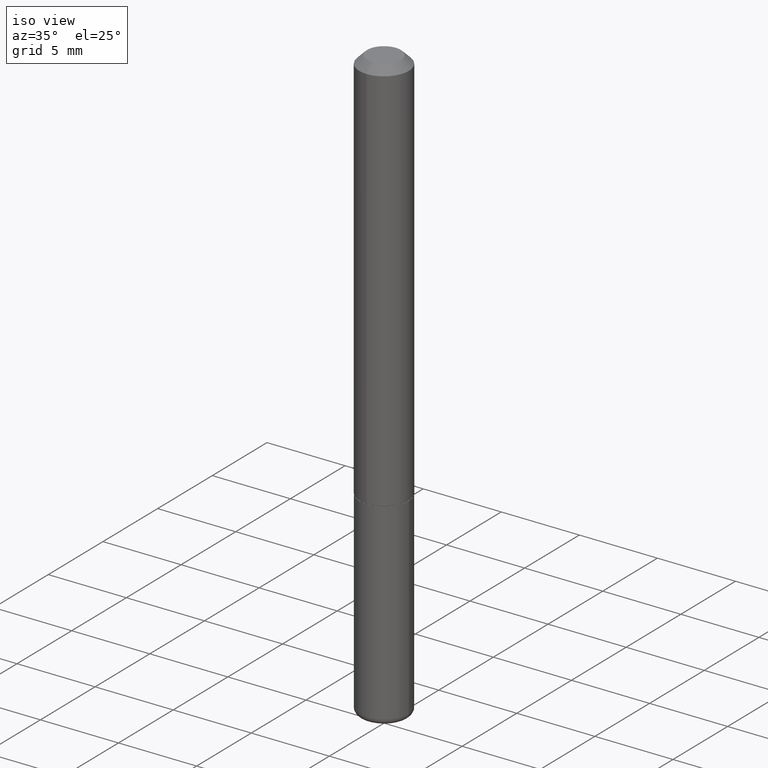
[diagram: clean part render]
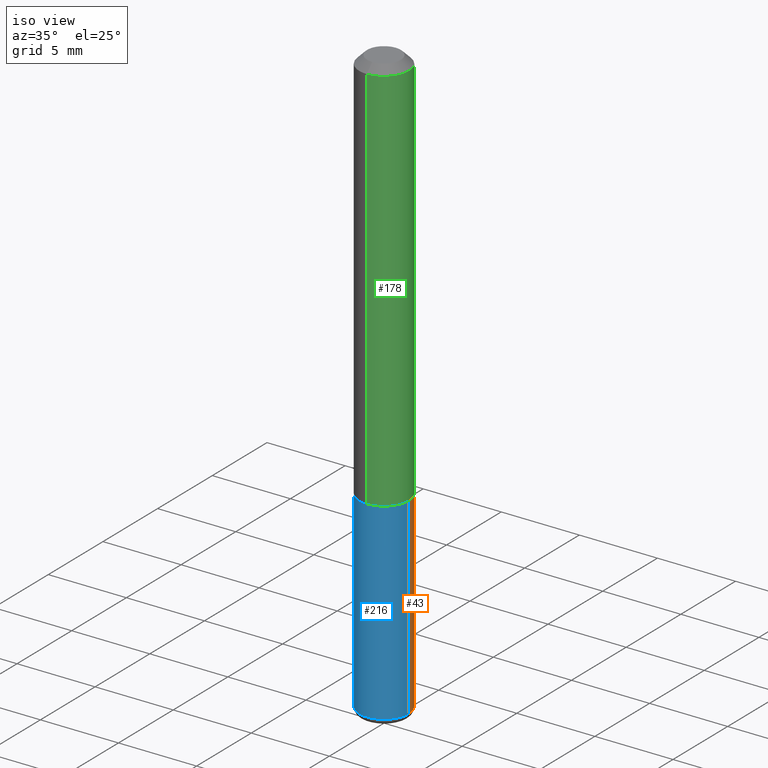
[diagram: same view with three faces highlighted in distinct colors, each labeled with its STEP entity id]
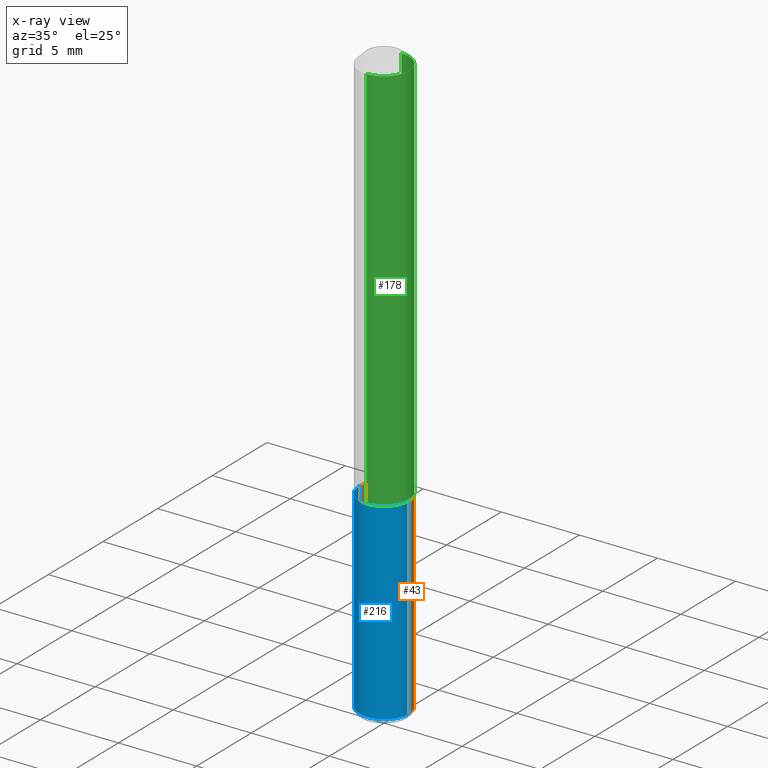
[diagram: x-ray of the same camera — body ghosted, the three highlighted faces saturated]
A machine part, iso view with three faces highlighted in distinct colors.
The next image is the same camera in x-ray (body ghosted, the three faces saturated) — at least one of them is partly hidden behind the body in this view.
Their STEP definitions:

[orange] entity #43 — the highlighted cylindrical surface (edge-blend (fillet) strip) has radius 1.5875 mm, axis along (-0, 0, 1).
#4 = CYLINDRICAL_SURFACE ( 'NONE', #40, 0.06250000000000001388 ) ;
#21 = VERTEX_POINT ( 'NONE', #140 ) ;
#23 = DIRECTION ( 'NONE',  ( -2.445468806185136877E-29, 3.491481338843145188E-15, 1.000000000000000000 ) ) ;
#39 = ORIENTED_EDGE ( 'NONE', *, *, #75, .F. ) ;
#40 = AXIS2_PLACEMENT_3D ( 'NONE', #142, #388, #105 ) ;
#43 = ADVANCED_FACE ( 'NONE', ( #387 ), #4, .T. ) ;
#45 = DIRECTION ( 'NONE',  ( -2.445468806185136877E-29, 3.491481338843145188E-15, 1.000000000000000000 ) ) ;
#57 = LINE ( 'NONE', #191, #70 ) ;
#70 = VECTOR ( 'NONE', #23, 39.37007874015748143 ) ;
#75 = EDGE_CURVE ( 'NONE', #406, #332, #241, .T. ) ;
#105 = DIRECTION ( 'NONE',  ( 1.000000000000000000, -6.982962677686267499E-15, 4.876176775795935793E-29 ) ) ;
#106 = DIRECTION ( 'NONE',  ( -2.445468806185136597E-29, 3.491481338843145583E-15, 1.000000000000000000 ) ) ;
#124 = ORIENTED_EDGE ( 'NONE', *, *, #333, .T. ) ;
#127 = ORIENTED_EDGE ( 'NONE', *, *, #236, .F. ) ;
#131 = CARTESIAN_POINT ( 'NONE',  ( 3.631521177184928138E-29, -5.184849788182071492E-15, -1.485000000000000098 ) ) ;
#140 = CARTESIAN_POINT ( 'NONE',  ( 0.06250000000000001388, -5.621284955537463950E-15, -1.485000000000000098 ) ) ;
#142 = CARTESIAN_POINT ( 'NONE',  ( 0.000000000000000000, 0.000000000000000000, 0.000000000000000000 ) ) ;
#146 = CARTESIAN_POINT ( 'NONE',  ( -0.06250000000000001388, -4.740760578332009665E-15, -1.485000000000000098 ) ) ;
#162 = CARTESIAN_POINT ( 'NONE',  ( 2.445468806185136036E-29, -3.491481338843144399E-15, -0.9999999999999996669 ) ) ;
#163 = ORIENTED_EDGE ( 'NONE', *, *, #239, .T. ) ;
#171 = DIRECTION ( 'NONE',  ( 1.000000000000000000, -6.982962677686261189E-15, 0.000000000000000000 ) ) ;
#191 = CARTESIAN_POINT ( 'NONE',  ( 0.06250000000000001388, -4.364351673553918173E-16, 3.047610484872460571E-30 ) ) ;
#221 = VECTOR ( 'NONE', #45, 39.37007874015748143 ) ;
#224 = DIRECTION ( 'NONE',  ( 1.000000000000000000, -6.982962677686269077E-15, 0.000000000000000000 ) ) ;
#236 = EDGE_CURVE ( 'NONE', #21, #406, #57, .T. ) ;
#239 = EDGE_CURVE ( 'NONE', #21, #324, #398, .T. ) ;
#241 = CIRCLE ( 'NONE', #283, 0.06250000000000001388 ) ;
#254 = DIRECTION ( 'NONE',  ( -2.445468806185136597E-29, 3.491481338843145583E-15, 1.000000000000000000 ) ) ;
#274 = LINE ( 'NONE', #397, #221 ) ;
#283 = AXIS2_PLACEMENT_3D ( 'NONE', #162, #254, #224 ) ;
#303 = CARTESIAN_POINT ( 'NONE',  ( 0.06250000000000001388, -3.927916506198536858E-15, -0.9999999999999996669 ) ) ;
#317 = AXIS2_PLACEMENT_3D ( 'NONE', #131, #106, #171 ) ;
#324 = VERTEX_POINT ( 'NONE', #146 ) ;
#332 = VERTEX_POINT ( 'NONE', #362 ) ;
#333 = EDGE_CURVE ( 'NONE', #324, #332, #274, .T. ) ;
#352 = EDGE_LOOP ( 'NONE', ( #163, #124, #39, #127 ) ) ;
#362 = CARTESIAN_POINT ( 'NONE',  ( -0.06250000000000001388, -3.894076353662544935E-15, -0.9999999999999996669 ) ) ;
#387 = FACE_OUTER_BOUND ( 'NONE', #352, .T. ) ;
#388 = DIRECTION ( 'NONE',  ( -2.445468806185136597E-29, 3.491481338843145583E-15, 1.000000000000000000 ) ) ;
#397 = CARTESIAN_POINT ( 'NONE',  ( -0.06250000000000001388, 4.440892098500627148E-16, -3.074334431409317165E-30 ) ) ;
#398 = CIRCLE ( 'NONE', #317, 0.06250000000000001388 ) ;
#406 = VERTEX_POINT ( 'NONE', #303 ) ;

[blue] entity #216 — the highlighted cylindrical surface (edge-blend (fillet) strip) has radius 1.5875 mm, axis along (-0, 0, 1).
#21 = VERTEX_POINT ( 'NONE', #140 ) ;
#23 = DIRECTION ( 'NONE',  ( -2.445468806185136877E-29, 3.491481338843145188E-15, 1.000000000000000000 ) ) ;
#26 = CIRCLE ( 'NONE', #377, 0.06250000000000001388 ) ;
#45 = DIRECTION ( 'NONE',  ( -2.445468806185136877E-29, 3.491481338843145188E-15, 1.000000000000000000 ) ) ;
#49 = EDGE_CURVE ( 'NONE', #324, #21, #185, .T. ) ;
#50 = DIRECTION ( 'NONE',  ( -2.445468806185136597E-29, 3.491481338843145583E-15, 1.000000000000000000 ) ) ;
#57 = LINE ( 'NONE', #191, #70 ) ;
#69 = DIRECTION ( 'NONE',  ( -2.445468806185136597E-29, 3.491481338843145583E-15, 1.000000000000000000 ) ) ;
#70 = VECTOR ( 'NONE', #23, 39.37007874015748143 ) ;
#82 = AXIS2_PLACEMENT_3D ( 'NONE', #402, #367, #318 ) ;
#87 = FACE_OUTER_BOUND ( 'NONE', #413, .T. ) ;
#102 = ORIENTED_EDGE ( 'NONE', *, *, #378, .F. ) ;
#140 = CARTESIAN_POINT ( 'NONE',  ( 0.06250000000000001388, -5.621284955537463950E-15, -1.485000000000000098 ) ) ;
#146 = CARTESIAN_POINT ( 'NONE',  ( -0.06250000000000001388, -4.740760578332009665E-15, -1.485000000000000098 ) ) ;
#185 = CIRCLE ( 'NONE', #330, 0.06250000000000001388 ) ;
#191 = CARTESIAN_POINT ( 'NONE',  ( 0.06250000000000001388, -4.364351673553918173E-16, 3.047610484872460571E-30 ) ) ;
#203 = DIRECTION ( 'NONE',  ( 1.000000000000000000, -6.982962677686261189E-15, 0.000000000000000000 ) ) ;
#216 = ADVANCED_FACE ( 'NONE', ( #87 ), #249, .T. ) ;
#221 = VECTOR ( 'NONE', #45, 39.37007874015748143 ) ;
#233 = CARTESIAN_POINT ( 'NONE',  ( 3.631521177184928138E-29, -5.184849788182071492E-15, -1.485000000000000098 ) ) ;
#236 = EDGE_CURVE ( 'NONE', #21, #406, #57, .T. ) ;
#246 = DIRECTION ( 'NONE',  ( 1.000000000000000000, -6.982962677686269077E-15, 0.000000000000000000 ) ) ;
#249 = CYLINDRICAL_SURFACE ( 'NONE', #82, 0.06250000000000001388 ) ;
#259 = ORIENTED_EDGE ( 'NONE', *, *, #333, .F. ) ;
#274 = LINE ( 'NONE', #397, #221 ) ;
#303 = CARTESIAN_POINT ( 'NONE',  ( 0.06250000000000001388, -3.927916506198536858E-15, -0.9999999999999996669 ) ) ;
#318 = DIRECTION ( 'NONE',  ( 1.000000000000000000, -6.982962677686267499E-15, 4.876176775795935793E-29 ) ) ;
#320 = ORIENTED_EDGE ( 'NONE', *, *, #49, .T. ) ;
#324 = VERTEX_POINT ( 'NONE', #146 ) ;
#329 = ORIENTED_EDGE ( 'NONE', *, *, #236, .T. ) ;
#330 = AXIS2_PLACEMENT_3D ( 'NONE', #233, #69, #203 ) ;
#332 = VERTEX_POINT ( 'NONE', #362 ) ;
#333 = EDGE_CURVE ( 'NONE', #324, #332, #274, .T. ) ;
#335 = CARTESIAN_POINT ( 'NONE',  ( 2.445468806185136036E-29, -3.491481338843144399E-15, -0.9999999999999996669 ) ) ;
#362 = CARTESIAN_POINT ( 'NONE',  ( -0.06250000000000001388, -3.894076353662544935E-15, -0.9999999999999996669 ) ) ;
#367 = DIRECTION ( 'NONE',  ( -2.445468806185136597E-29, 3.491481338843145583E-15, 1.000000000000000000 ) ) ;
#377 = AXIS2_PLACEMENT_3D ( 'NONE', #335, #50, #246 ) ;
#378 = EDGE_CURVE ( 'NONE', #332, #406, #26, .T. ) ;
#397 = CARTESIAN_POINT ( 'NONE',  ( -0.06250000000000001388, 4.440892098500627148E-16, -3.074334431409317165E-30 ) ) ;
#402 = CARTESIAN_POINT ( 'NONE',  ( 0.000000000000000000, 0.000000000000000000, 0.000000000000000000 ) ) ;
#406 = VERTEX_POINT ( 'NONE', #303 ) ;
#413 = EDGE_LOOP ( 'NONE', ( #259, #320, #329, #102 ) ) ;

[green] entity #178 — the highlighted cylindrical surface (edge-blend (fillet) strip) has radius 1.5875 mm, axis along (-0, 0, 1).
#8 = LINE ( 'NONE', #141, #350 ) ;
#34 = AXIS2_PLACEMENT_3D ( 'NONE', #293, #302, #393 ) ;
#44 = CARTESIAN_POINT ( 'NONE',  ( -4.364351673553918666E-16, -0.06250000000000002776, 2.202571976932416997E-16 ) ) ;
#48 = DIRECTION ( 'NONE',  ( -6.982962677686266711E-15, -1.000000000000000000, 3.524115163091865618E-15 ) ) ;
#73 = VERTEX_POINT ( 'NONE', #123 ) ;
#78 = CYLINDRICAL_SURFACE ( 'NONE', #384, 0.06250000000000002776 ) ;
#79 = CARTESIAN_POINT ( 'NONE',  ( 4.440892098500754352E-16, 0.06249999999999659994, -0.9990000000000002212 ) ) ;
#91 = CARTESIAN_POINT ( 'NONE',  ( -4.364351673553682501E-16, -0.06250000000000363598, -0.9989999999999996660 ) ) ;
#99 = ORIENTED_EDGE ( 'NONE', *, *, #147, .T. ) ;
#123 = CARTESIAN_POINT ( 'NONE',  ( -4.287811248607198352E-16, -0.06250000000000001388, -0.01999999999999984776 ) ) ;
#141 = CARTESIAN_POINT ( 'NONE',  ( 4.440892098500628134E-16, 0.06250000000000002776, -2.202571976932416997E-16 ) ) ;
#147 = EDGE_CURVE ( 'NONE', #227, #326, #392, .T. ) ;
#159 = EDGE_LOOP ( 'NONE', ( #99, #230, #165, #286 ) ) ;
#165 = ORIENTED_EDGE ( 'NONE', *, *, #323, .F. ) ;
#177 = DIRECTION ( 'NONE',  ( -2.422680728509238326E-29, 3.524115163091865223E-15, 1.000000000000000000 ) ) ;
#178 = ADVANCED_FACE ( 'NONE', ( #180 ), #78, .T. ) ;
#179 = CARTESIAN_POINT ( 'NONE',  ( 4.364351673553917187E-16, 0.06249999999999988204, -0.02000000000000029185 ) ) ;
#180 = FACE_OUTER_BOUND ( 'NONE', #159, .T. ) ;
#213 = CARTESIAN_POINT ( 'NONE',  ( 4.845361457018493257E-31, -7.048230326183754359E-17, -0.02000000000000006981 ) ) ;
#214 = DIRECTION ( 'NONE',  ( -2.422680728509238326E-29, 3.524115163091865223E-15, 1.000000000000000000 ) ) ;
#217 = DIRECTION ( 'NONE',  ( -6.982962677686265922E-15, -1.000000000000000000, 3.551402391763545142E-15 ) ) ;
#227 = VERTEX_POINT ( 'NONE', #91 ) ;
#230 = ORIENTED_EDGE ( 'NONE', *, *, #340, .T. ) ;
#243 = LINE ( 'NONE', #44, #266 ) ;
#253 = AXIS2_PLACEMENT_3D ( 'NONE', #213, #177, #217 ) ;
#266 = VECTOR ( 'NONE', #269, 39.37007874015748143 ) ;
#269 = DIRECTION ( 'NONE',  ( -2.422680728509238606E-29, 3.524115163091865618E-15, 1.000000000000000000 ) ) ;
#275 = DIRECTION ( 'NONE',  ( -2.422680728509238606E-29, 3.524115163091865618E-15, 1.000000000000000000 ) ) ;
#286 = ORIENTED_EDGE ( 'NONE', *, *, #401, .F. ) ;
#293 = CARTESIAN_POINT ( 'NONE',  ( 2.420258047780728810E-29, -3.520591047928773206E-15, -0.9989999999999998881 ) ) ;
#302 = DIRECTION ( 'NONE',  ( -2.422680728509238326E-29, 3.524115163091865223E-15, 1.000000000000000000 ) ) ;
#323 = EDGE_CURVE ( 'NONE', #73, #371, #363, .T. ) ;
#326 = VERTEX_POINT ( 'NONE', #79 ) ;
#340 = EDGE_CURVE ( 'NONE', #326, #371, #8, .T. ) ;
#350 = VECTOR ( 'NONE', #275, 39.37007874015748143 ) ;
#363 = CIRCLE ( 'NONE', #253, 0.06249999999999995143 ) ;
#371 = VERTEX_POINT ( 'NONE', #179 ) ;
#384 = AXIS2_PLACEMENT_3D ( 'NONE', #394, #214, #48 ) ;
#392 = CIRCLE ( 'NONE', #34, 0.06250000000000012490 ) ;
#393 = DIRECTION ( 'NONE',  ( -6.982962677686265133E-15, -1.000000000000000000, 4.370956789862812472E-15 ) ) ;
#394 = CARTESIAN_POINT ( 'NONE',  ( 0.000000000000000000, 0.000000000000000000, 0.000000000000000000 ) ) ;
#401 = EDGE_CURVE ( 'NONE', #227, #73, #243, .T. ) ;